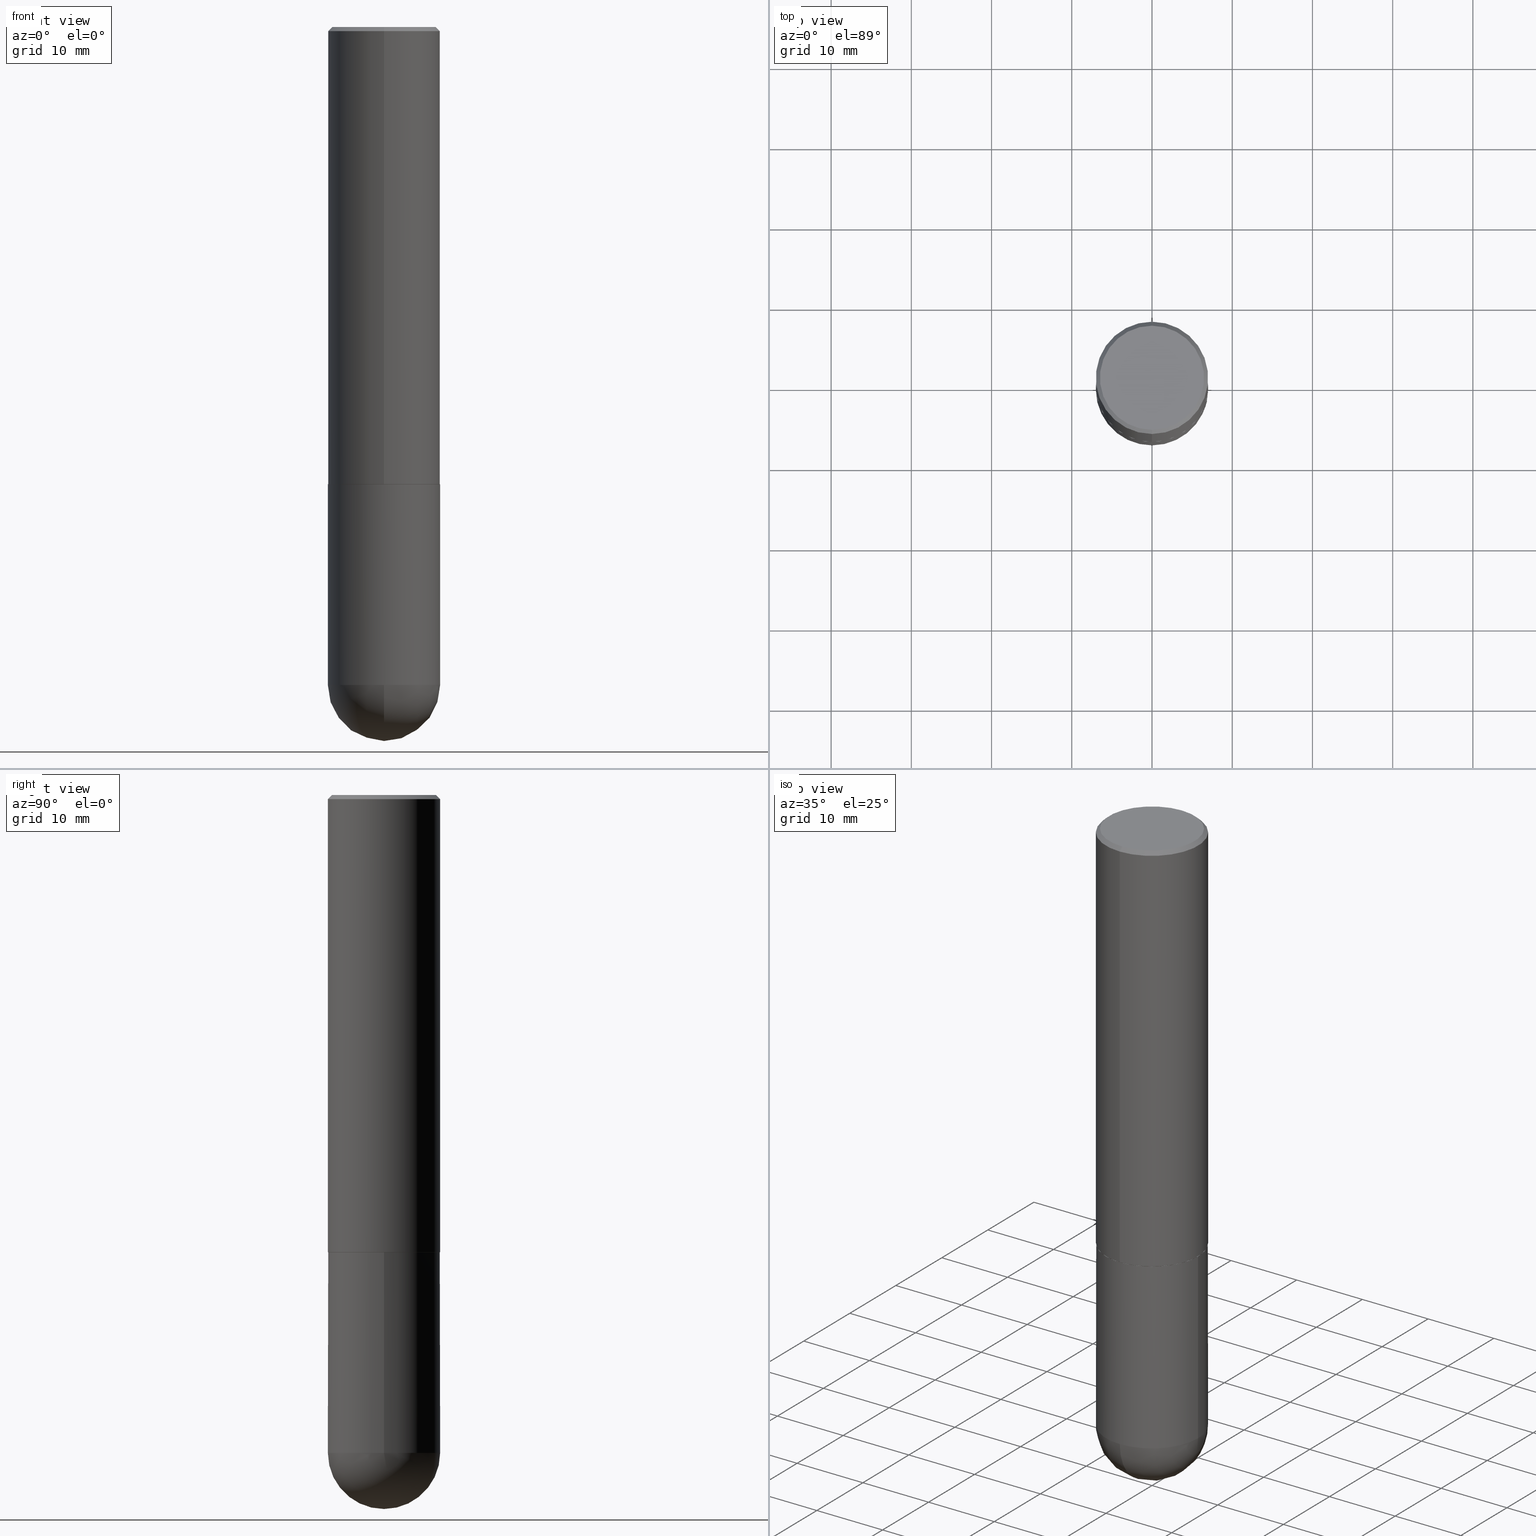
[diagram: canonical four-view strip — front | top / right | iso, engineering-drawing reading convention]
A machine part, canonical four-view strip (front | top / right | iso — engineering-drawing reading convention). The complete STEP part file that produces these views, byte-faithful:
ISO-10303-21;
HEADER;
FILE_DESCRIPTION (( 'STEP AP203' ),
    '1' );
FILE_NAME ('48708.STEP',
    '2024-04-10T11:57:20',
    ( '' ),
    ( '' ),
    'SwSTEP 2.0',
    'SolidWorks 2023',
    '' );
FILE_SCHEMA (( 'CONFIG_CONTROL_DESIGN' ));
ENDSEC;

DATA;
#1 = CARTESIAN_POINT ( 'NONE',  ( 7.563587169093589749E-29, -1.174573157432737594E-14, -3.228299999999999503 ) ) ;
#2 = ORIENTED_EDGE ( 'NONE', *, *, #368, .T. ) ;
#3 = PERSON_AND_ORGANIZATION ( #40, #45 ) ;
#4 = AXIS2_PLACEMENT_3D ( 'NONE', #171, #225, #68 ) ;
#5 = CIRCLE ( 'NONE', #226, 0.2756000000000000671 ) ;
#6 = APPROVAL ( #380, 'UNSPECIFIED' ) ;
#7 = DIRECTION ( 'NONE',  ( -6.982962677686265133E-15, -1.000000000000000000, 3.979385278462145862E-15 ) ) ;
#8 = CARTESIAN_POINT ( 'NONE',  ( 4.892644131177882669E-31, -6.980518845624820179E-17, -0.02000000000000006287 ) ) ;
#9 = DIRECTION ( 'NONE',  ( -2.446322065588933505E-29, 3.490259422812398922E-15, 1.000000000000000000 ) ) ;
#10 = VERTEX_POINT ( 'NONE', #219 ) ;
#11 = AXIS2_PLACEMENT_3D ( 'NONE', #110, #287, #7 ) ;
#12 = CC_DESIGN_PERSON_AND_ORGANIZATION_ASSIGNMENT ( #3, #278, ( #177 ) ) ;
#13 = EDGE_CURVE ( 'NONE', #154, #372, #407, .T. ) ;
#14 = CC_DESIGN_PERSON_AND_ORGANIZATION_ASSIGNMENT ( #103, #385, ( #102 ) ) ;
#15 = AXIS2_PLACEMENT_3D ( 'NONE', #277, #362, #52 ) ;
#16 = DIRECTION ( 'NONE',  ( -6.982962677686265922E-15, -1.000000000000000000, 3.490259422812399316E-15 ) ) ;
#17 = APPROVAL_PERSON_ORGANIZATION ( #363, #38, #80 ) ;
#18 = CARTESIAN_POINT ( 'NONE',  ( 0.000000000000000000, 0.000000000000000000, 0.000000000000000000 ) ) ;
#19 = EDGE_CURVE ( 'NONE', #142, #217, #186, .T. ) ;
#20 = AXIS2_PLACEMENT_3D ( 'NONE', #8, #261, #163 ) ;
#21 = CC_DESIGN_APPROVAL ( #238, ( #92 ) ) ;
#22 = CARTESIAN_POINT ( 'NONE',  ( 0.000000000000000000, 0.000000000000000000, 0.000000000000000000 ) ) ;
#23 = CARTESIAN_POINT ( 'NONE',  ( 4.892644131177882669E-31, -6.980518845624820179E-17, -0.02000000000000006287 ) ) ;
#24 = VERTEX_POINT ( 'NONE', #246 ) ;
#25 = CARTESIAN_POINT ( 'NONE',  ( 1.784845260416607569E-15, 0.2555999999999997163, -7.727481196167660743E-16 ) ) ;
#26 = CARTESIAN_POINT ( 'NONE',  ( 4.892644131177882669E-31, -6.980518845624820179E-17, -0.02000000000000006287 ) ) ;
#27 = COORDINATED_UNIVERSAL_TIME_OFFSET ( 5, 0, .BEHIND. ) ;
#28 = DIRECTION ( 'NONE',  ( -2.445468806185136597E-29, 3.491481338843145583E-15, 1.000000000000000000 ) ) ;
#29 = EDGE_CURVE ( 'NONE', #122, #164, #307, .T. ) ;
#30 = CARTESIAN_POINT ( 'NONE',  ( 0.000000000000000000, 0.000000000000000000, 0.000000000000000000 ) ) ;
#31 = AXIS2_PLACEMENT_3D ( 'NONE', #182, #150, #252 ) ;
#32 = ORIENTED_EDGE ( 'NONE', *, *, #100, .T. ) ;
#33 = CARTESIAN_POINT ( 'NONE',  ( -1.822148268208117593E-15, -0.2555999999999997163, 1.130834686179012597E-15 ) ) ;
#34 = FACE_OUTER_BOUND ( 'NONE', #312, .T. ) ;
#35 = ADVANCED_FACE ( 'NONE', ( #153 ), #233, .T. ) ;
#36 = DATE_AND_TIME ( #319, #315 ) ;
#37 = DIRECTION ( 'NONE',  ( 5.024295867788576727E-15, 0.7071067811866224018, 0.7071067811864726327 ) ) ;
#38 = APPROVAL ( #149, 'UNSPECIFIED' ) ;
#39 = PRODUCT_DEFINITION_SHAPE ( 'NONE', 'NONE',  #92 ) ;
#40 = PERSON ( 'UNSPECIFIED', 'UNSPECIFIED', 'UNSPECIFIED', ('UNSPECIFIED'), ('UNSPECIFIED'), ('UNSPECIFIED') ) ;
#41 = VECTOR ( 'NONE', #178, 39.37007874015748143 ) ;
#42 = EDGE_LOOP ( 'NONE', ( #32, #131, #271, #111 ) ) ;
#43 = ADVANCED_FACE ( 'NONE', ( #369 ), #64, .F. ) ;
#44 = EDGE_LOOP ( 'NONE', ( #329, #215 ) ) ;
#45 = ORGANIZATION ( 'UNSPECIFIED', 'UNSPECIFIED', '' ) ;
#46 = EDGE_CURVE ( 'NONE', #142, #353, #218, .T. ) ;
#47 = SHAPE_DEFINITION_REPRESENTATION ( #39, #371 ) ;
#48 = AXIS2_PLACEMENT_3D ( 'NONE', #84, #151, #89 ) ;
#49 = CIRCLE ( 'NONE', #144, 0.2555999999999997163 ) ;
#50 = CARTESIAN_POINT ( 'NONE',  ( -1.924504513970282100E-15, -0.2756000000000080608, -2.243099999999998317 ) ) ;
#51 = UNCERTAINTY_MEASURE_WITH_UNIT (LENGTH_MEASURE( 1.000000000000000082E-05 ), #158, 'distance_accuracy_value', 'NONE');
#52 = DIRECTION ( 'NONE',  ( -6.982962677686265922E-15, -1.000000000000000000, 3.490259422812398922E-15 ) ) ;
#53 = COORDINATED_UNIVERSAL_TIME_OFFSET ( 5, 0, .BEHIND. ) ;
#54 = APPLICATION_PROTOCOL_DEFINITION ( 'international standard', 'config_control_design', 1994, #220 ) ;
#55 = CARTESIAN_POINT ( 'NONE',  ( 7.894706947007475996E-29, -1.127154920618732565E-14, -3.228299999999999503 ) ) ;
#56 = ORIENTED_EDGE ( 'NONE', *, *, #395, .T. ) ;
#57 = EDGE_LOOP ( 'NONE', ( #332, #136, #108, #387 ) ) ;
#58 = CARTESIAN_POINT ( 'NONE',  ( -5.839967127814690847E-45, 8.332100087509464764E-31, 2.387243777081642336E-16 ) ) ;
#59 = VECTOR ( 'NONE', #37, 39.37007874015748143 ) ;
#60 = VERTEX_POINT ( 'NONE', #309 ) ;
#61 = DIRECTION ( 'NONE',  ( 6.982962677686265922E-15, 1.000000000000000000, -3.484816075009406388E-15 ) ) ;
#62 = EDGE_CURVE ( 'NONE', #164, #10, #325, .T. ) ;
#63 = DIRECTION ( 'NONE',  ( -2.445468806185136597E-29, 3.491481338843145583E-15, 1.000000000000000000 ) ) ;
#64 = PLANE ( 'NONE',  #15 ) ;
#65 = APPROVAL_STATUS ( 'not_yet_approved' ) ;
#66 = CONICAL_SURFACE ( 'NONE', #125, 0.2756000000000000116, 0.7853981633974473908 ) ;
#67 = CIRCLE ( 'NONE', #351, 0.2555999999999997163 ) ;
#68 = DIRECTION ( 'NONE',  ( -1.000000000000000000, 6.982962677686265922E-15, -4.876176775795935793E-29 ) ) ;
#69 = PERSON_AND_ORGANIZATION_ROLE ( 'design_owner' ) ;
#70 = CARTESIAN_POINT ( 'NONE',  ( 4.892644131177882669E-31, -6.980518845624820179E-17, -0.02000000000000006287 ) ) ;
#71 = APPROVAL_ROLE ( '' ) ;
#72 = AXIS2_PLACEMENT_3D ( 'NONE', #30, #193, #316 ) ;
#73 = ORIENTED_EDGE ( 'NONE', *, *, #46, .F. ) ;
#74 = DIRECTION ( 'NONE',  ( 1.000000000000000000, 0.000000000000000000, 0.000000000000000000 ) ) ;
#75 = ADVANCED_FACE ( 'NONE', ( #269 ), #181, .T. ) ;
#76 = FACE_OUTER_BOUND ( 'NONE', #129, .T. ) ;
#77 = CC_DESIGN_PERSON_AND_ORGANIZATION_ASSIGNMENT ( #313, #99, ( #177 ) ) ;
#78 = LOCAL_TIME ( 7, 57, 20.00000000000000000, #109 ) ;
#79 = ADVANCED_FACE ( 'NONE', ( #375 ), #361, .T. ) ;
#80 = APPROVAL_ROLE ( '' ) ;
#81 = ADVANCED_FACE ( 'NONE', ( #311 ), #212, .T. ) ;
#82 = DIRECTION ( 'NONE',  ( -1.000000000000000000, 6.982962677686265922E-15, -4.883557194083112340E-29 ) ) ;
#83 = APPROVAL_PERSON_ORGANIZATION ( #137, #238, #71 ) ;
#84 = CARTESIAN_POINT ( 'NONE',  ( 5.489791347388124383E-29, -7.832491170733302400E-15, -2.244099999999999540 ) ) ;
#85 = DIRECTION ( 'NONE',  ( -2.445468806185136597E-29, 3.491481338843145583E-15, 1.000000000000000000 ) ) ;
#86 = EDGE_LOOP ( 'NONE', ( #2, #156, #292, #202, #266 ) ) ;
#87 = EDGE_CURVE ( 'NONE', #231, #372, #376, .T. ) ;
#88 = MANIFOLD_SOLID_BREP ( 'Body-Move/Copy2[2]', #390 ) ;
#89 = DIRECTION ( 'NONE',  ( -6.982962677686265133E-15, -1.000000000000000000, 3.979385278462145862E-15 ) ) ;
#90 = CYLINDRICAL_SURFACE ( 'NONE', #192, 0.2756000000000001227 ) ;
#91 = AXIS2_PLACEMENT_3D ( 'NONE', #306, #28, #364 ) ;
#92 = PRODUCT_DEFINITION ( 'UNKNOWN', '', #177, #397 ) ;
#93 = ORIENTED_EDGE ( 'NONE', *, *, #223, .T. ) ;
#94 = LINE ( 'NONE', #216, #41 ) ;
#95 = ORIENTED_EDGE ( 'NONE', *, *, #289, .F. ) ;
#96 = VERTEX_POINT ( 'NONE', #386 ) ;
#97 = PERSON_AND_ORGANIZATION ( #40, #45 ) ;
#98 = DIRECTION ( 'NONE',  ( -2.445468806185136877E-29, 3.491481338843145188E-15, 1.000000000000000000 ) ) ;
#99 = PERSON_AND_ORGANIZATION_ROLE ( 'creator' ) ;
#100 = EDGE_CURVE ( 'NONE', #217, #24, #191, .T. ) ;
#101 = CARTESIAN_POINT ( 'NONE',  ( -0.2756000000000000116, -7.595135459587776616E-15, -2.244099999999999540 ) ) ;
#102 = SECURITY_CLASSIFICATION ( '', '', #203 ) ;
#103 = PERSON_AND_ORGANIZATION ( #40, #45 ) ;
#104 = DIRECTION ( 'NONE',  ( -6.982962677686265922E-15, -1.000000000000000000, 3.964946289788476952E-15 ) ) ;
#105 = EDGE_LOOP ( 'NONE', ( #73, #95 ) ) ;
#106 = COORDINATED_UNIVERSAL_TIME_OFFSET ( 5, 0, .BEHIND. ) ;
#107 = CARTESIAN_POINT ( 'NONE',  ( -0.2756000000000000671, 1.958255779754836589E-15, -1.355658510874252287E-29 ) ) ;
#108 = ORIENTED_EDGE ( 'NONE', *, *, #239, .T. ) ;
#109 = COORDINATED_UNIVERSAL_TIME_OFFSET ( 5, 0, .BEHIND. ) ;
#110 = CARTESIAN_POINT ( 'NONE',  ( 5.489791347388124383E-29, -7.832491170733302400E-15, -2.244099999999999540 ) ) ;
#111 = ORIENTED_EDGE ( 'NONE', *, *, #239, .F. ) ;
#112 = CIRCLE ( 'NONE', #161, 0.2756000000000000116 ) ;
#113 = ORIENTED_EDGE ( 'NONE', *, *, #345, .T. ) ;
#114 = EDGE_CURVE ( 'NONE', #24, #217, #399, .T. ) ;
#115 = DIRECTION ( 'NONE',  ( 1.000000000000000000, -6.982962677686267499E-15, 4.876176775795935793E-29 ) ) ;
#116 = ADVANCED_FACE ( 'NONE', ( #378 ), #317, .F. ) ;
#117 = CARTESIAN_POINT ( 'NONE',  ( 0.2756000000000000116, -9.759737786468235716E-15, -2.244099999999999540 ) ) ;
#118 = CARTESIAN_POINT ( 'NONE',  ( 5.487876547960063631E-29, -7.835233272497900762E-15, -2.244099999999999540 ) ) ;
#119 = ORIENTED_EDGE ( 'NONE', *, *, #19, .T. ) ;
#120 = ADVANCED_FACE ( 'NONE', ( #34 ), #66, .T. ) ;
#121 = DIRECTION ( 'NONE',  ( -6.982962677686265922E-15, -1.000000000000000000, 3.490259422812399316E-15 ) ) ;
#122 = VERTEX_POINT ( 'NONE', #33 ) ;
#123 = ORIENTED_EDGE ( 'NONE', *, *, #331, .T. ) ;
#124 =( NAMED_UNIT ( * ) PLANE_ANGLE_UNIT ( ) SI_UNIT ( $, .RADIAN. ) );
#125 = AXIS2_PLACEMENT_3D ( 'NONE', #70, #347, #322 ) ;
#126 = DIRECTION ( 'NONE',  ( -2.445468806185136597E-29, 3.491481338843145583E-15, 1.000000000000000000 ) ) ;
#127 = CARTESIAN_POINT ( 'NONE',  ( 8.249342563543106087E-29, -1.269110819842029813E-14, -3.503899999999999793 ) ) ;
#128 = CARTESIAN_POINT ( 'NONE',  ( 7.563587169093589749E-29, -1.174573157432737594E-14, -3.228299999999999503 ) ) ;
#129 = EDGE_LOOP ( 'NONE', ( #272, #56, #123, #140, #337 ) ) ;
#130 = CARTESIAN_POINT ( 'NONE',  ( 5.487345025322535087E-29, -7.829000911310490294E-15, -2.243099999999999206 ) ) ;
#131 = ORIENTED_EDGE ( 'NONE', *, *, #155, .T. ) ;
#132 = DATE_TIME_ROLE ( 'creation_date' ) ;
#133 = DIRECTION ( 'NONE',  ( -1.000000000000000000, 7.105427357601001070E-15, -4.926315508542082329E-29 ) ) ;
#134 = AXIS2_PLACEMENT_3D ( 'NONE', #23, #179, #61 ) ;
#135 = CIRCLE ( 'NONE', #295, 0.2756000000000000671 ) ;
#136 = ORIENTED_EDGE ( 'NONE', *, *, #114, .T. ) ;
#137 = PERSON_AND_ORGANIZATION ( #40, #45 ) ;
#138 = EDGE_CURVE ( 'NONE', #172, #154, #230, .T. ) ;
#139 = CYLINDRICAL_SURFACE ( 'NONE', #321, 0.2756000000000000671 ) ;
#140 = ORIENTED_EDGE ( 'NONE', *, *, #87, .T. ) ;
#141 = DIRECTION ( 'NONE',  ( -2.446322065588933785E-29, 3.490259422812398922E-15, 1.000000000000000000 ) ) ;
#142 = VERTEX_POINT ( 'NONE', #204 ) ;
#143 = AXIS2_PLACEMENT_3D ( 'NONE', #22, #126, #251 ) ;
#144 = AXIS2_PLACEMENT_3D ( 'NONE', #327, #297, #16 ) ;
#145 = DIRECTION ( 'NONE',  ( 6.982962677686265922E-15, 1.000000000000000000, 0.000000000000000000 ) ) ;
#146 = EDGE_CURVE ( 'NONE', #10, #164, #206, .T. ) ;
#147 = CIRCLE ( 'NONE', #31, 0.2746000000000000107 ) ;
#148 = ADVANCED_FACE ( 'NONE', ( #280 ), #410, .T. ) ;
#149 = APPROVAL_STATUS ( 'not_yet_approved' ) ;
#150 = DIRECTION ( 'NONE',  ( -2.446322065588933505E-29, 3.490259422812398922E-15, 1.000000000000000000 ) ) ;
#151 = DIRECTION ( 'NONE',  ( -2.446322065588933505E-29, 3.490259422812398922E-15, 1.000000000000000000 ) ) ;
#152 = CC_DESIGN_SECURITY_CLASSIFICATION ( #102, ( #177 ) ) ;
#153 = FACE_OUTER_BOUND ( 'NONE', #259, .T. ) ;
#154 = VERTEX_POINT ( 'NONE', #101 ) ;
#155 = EDGE_CURVE ( 'NONE', #24, #10, #198, .T. ) ;
#156 = ORIENTED_EDGE ( 'NONE', *, *, #138, .T. ) ;
#157 = DATE_AND_TIME ( #229, #235 ) ;
#158 =( CONVERSION_BASED_UNIT ( 'INCH', #308 ) LENGTH_UNIT ( ) NAMED_UNIT ( #279 ) );
#159 = DIRECTION ( 'NONE',  ( -2.446322065588933505E-29, 3.490259422812398922E-15, 1.000000000000000000 ) ) ;
#160 =( LENGTH_UNIT ( ) NAMED_UNIT ( * ) SI_UNIT ( $, .METRE. ) );
#161 = AXIS2_PLACEMENT_3D ( 'NONE', #330, #185, #336 ) ;
#162 = CARTESIAN_POINT ( 'NONE',  ( 0.000000000000000000, 0.000000000000000000, 0.000000000000000000 ) ) ;
#163 = DIRECTION ( 'NONE',  ( -6.982962677686265922E-15, -1.000000000000000000, 3.484816075009406388E-15 ) ) ;
#164 = VERTEX_POINT ( 'NONE', #389 ) ;
#165 = MECHANICAL_CONTEXT ( 'NONE', #220, 'mechanical' ) ;
#166 = CARTESIAN_POINT ( 'NONE',  ( -0.2756000000000000671, -7.595135459587778194E-15, -3.228299999999999503 ) ) ;
#167 = EDGE_CURVE ( 'NONE', #353, #24, #227, .T. ) ;
#168 = CARTESIAN_POINT ( 'NONE',  ( 7.563587169093589749E-29, -1.174573157432737594E-14, -3.228299999999999503 ) ) ;
#169 = ORIENTED_EDGE ( 'NONE', *, *, #146, .T. ) ;
#170 = DIRECTION ( 'NONE',  ( 0.000000000000000000, 0.000000000000000000, 1.000000000000000000 ) ) ;
#171 = CARTESIAN_POINT ( 'NONE',  ( 1.924504513970389780E-15, 0.2755999999999921846, -2.244100000000000428 ) ) ;
#172 = VERTEX_POINT ( 'NONE', #166 ) ;
#173 = ORIENTED_EDGE ( 'NONE', *, *, #100, .F. ) ;
#174 = EDGE_CURVE ( 'NONE', #274, #60, #285, .T. ) ;
#175 = VECTOR ( 'NONE', #201, 39.37007874015748143 ) ;
#176 = VECTOR ( 'NONE', #356, 39.37007874015748143 ) ;
#177 = PRODUCT_DEFINITION_FORMATION_WITH_SPECIFIED_SOURCE ( 'ANY', '', #294, .NOT_KNOWN. ) ;
#178 = DIRECTION ( 'NONE',  ( 4.937700262164543309E-15, 0.7071067811865444641, -0.7071067811865506814 ) ) ;
#179 = DIRECTION ( 'NONE',  ( 2.446322065588933505E-29, -3.490259422812398922E-15, -1.000000000000000000 ) ) ;
#180 = CARTESIAN_POINT ( 'NONE',  ( 1.924504513970413840E-15, 0.2755999999999887429, -3.228300000000000836 ) ) ;
#181 = CYLINDRICAL_SURFACE ( 'NONE', #143, 0.2756000000000000671 ) ;
#182 = CARTESIAN_POINT ( 'NONE',  ( 5.489791347388124383E-29, -7.832491170733302400E-15, -2.244099999999999540 ) ) ;
#183 = CC_DESIGN_APPROVAL ( #6, ( #177 ) ) ;
#184 = DIRECTION ( 'NONE',  ( 1.000000000000000000, -6.982962677686265922E-15, 0.000000000000000000 ) ) ;
#185 = DIRECTION ( 'NONE',  ( -2.445468806185136597E-29, 3.491481338843145583E-15, 1.000000000000000000 ) ) ;
#186 = LINE ( 'NONE', #248, #314 ) ;
#187 = PLANE ( 'NONE',  #391 ) ;
#188 = DIRECTION ( 'NONE',  ( -2.446322065588933505E-29, 3.490259422812398922E-15, 1.000000000000000000 ) ) ;
#189 = ORIENTED_EDGE ( 'NONE', *, *, #304, .T. ) ;
#190 = CALENDAR_DATE ( 2024, 10, 4 ) ;
#191 = CIRCLE ( 'NONE', #298, 0.2756000000000002892 ) ;
#192 = AXIS2_PLACEMENT_3D ( 'NONE', #18, #403, #268 ) ;
#193 = DIRECTION ( 'NONE',  ( -2.446322065588933505E-29, 3.490259422812398922E-15, 1.000000000000000000 ) ) ;
#194 = ORIENTED_EDGE ( 'NONE', *, *, #174, .T. ) ;
#195 = CARTESIAN_POINT ( 'NONE',  ( 5.487345025322535087E-29, -7.829000911310490294E-15, -2.243099999999999206 ) ) ;
#196 = ADVANCED_FACE ( 'NONE', ( #383 ), #207, .T. ) ;
#197 = PERSON_AND_ORGANIZATION_ROLE ( 'creator' ) ;
#198 = LINE ( 'NONE', #324, #241 ) ;
#199 = CC_DESIGN_PERSON_AND_ORGANIZATION_ASSIGNMENT ( #97, #69, ( #294 ) ) ;
#200 = ORIENTED_EDGE ( 'NONE', *, *, #340, .F. ) ;
#201 = DIRECTION ( 'NONE',  ( -2.445468806185136877E-29, 3.491481338843145188E-15, 1.000000000000000000 ) ) ;
#202 = ORIENTED_EDGE ( 'NONE', *, *, #87, .F. ) ;
#203 = SECURITY_CLASSIFICATION_LEVEL ( 'unclassified' ) ;
#204 = CARTESIAN_POINT ( 'NONE',  ( -1.917521551292593719E-15, -0.2746000000000077823, -2.244099999999998207 ) ) ;
#205 = ADVANCED_FACE ( 'NONE', ( #76 ), #139, .T. ) ;
#206 = CIRCLE ( 'NONE', #20, 0.2756000000000000116 ) ;
#207 = CONICAL_SURFACE ( 'NONE', #11, 0.2746000000000000107, 0.7853981633975507526 ) ;
#208 = DATE_TIME_ROLE ( 'classification_date' ) ;
#209 = SPHERICAL_SURFACE ( 'NONE', #305, 0.2756000000000003447 ) ;
#210 = AXIS2_PLACEMENT_3D ( 'NONE', #162, #170, #74 ) ;
#211 = CARTESIAN_POINT ( 'NONE',  ( 7.894706947007475996E-29, -1.127154920618732565E-14, -3.228299999999999503 ) ) ;
#212 = CYLINDRICAL_SURFACE ( 'NONE', #72, 0.2756000000000001227 ) ;
#213 = ORIENTED_EDGE ( 'NONE', *, *, #46, .T. ) ;
#214 = DATE_AND_TIME ( #366, #326 ) ;
#215 = ORIENTED_EDGE ( 'NONE', *, *, #255, .T. ) ;
#216 = CARTESIAN_POINT ( 'NONE',  ( 1.924504513970335348E-15, 0.2755999999999999006, -0.02000000000000102390 ) ) ;
#217 = VERTEX_POINT ( 'NONE', #50 ) ;
#218 = CIRCLE ( 'NONE', #48, 0.2746000000000000107 ) ;
#219 = CARTESIAN_POINT ( 'NONE',  ( 1.924504513970335348E-15, 0.2755999999999999006, -0.02000000000000102390 ) ) ;
#220 = APPLICATION_CONTEXT ( 'configuration controlled 3d designs of mechanical parts and assemblies' ) ;
#221 = FACE_OUTER_BOUND ( 'NONE', #42, .T. ) ;
#222 = CARTESIAN_POINT ( 'NONE',  ( -1.890753248185833319E-15, -0.2756000000000000671, -0.01999999999999910530 ) ) ;
#223 = EDGE_CURVE ( 'NONE', #274, #411, #343, .T. ) ;
#224 = MANIFOLD_SOLID_BREP ( 'Body-Move/Copy2[1]', #303 ) ;
#225 = DIRECTION ( 'NONE',  ( 2.438088387897960049E-29, -3.491481338843145188E-15, -1.000000000000000000 ) ) ;
#226 = AXIS2_PLACEMENT_3D ( 'NONE', #409, #63, #370 ) ;
#227 = LINE ( 'NONE', #344, #59 ) ;
#228 = ORIENTED_EDGE ( 'NONE', *, *, #368, .F. ) ;
#229 = CALENDAR_DATE ( 2024, 10, 4 ) ;
#230 = LINE ( 'NONE', #107, #175 ) ;
#231 = VERTEX_POINT ( 'NONE', #359 ) ;
#232 = DATE_AND_TIME ( #190, #78 ) ;
#233 = CONICAL_SURFACE ( 'NONE', #134, 0.2756000000000000116, 0.7853981633974473908 ) ;
#234 = CARTESIAN_POINT ( 'NONE',  ( 0.000000000000000000, 0.000000000000000000, 0.000000000000000000 ) ) ;
#235 = LOCAL_TIME ( 7, 57, 20.00000000000000000, #106 ) ;
#236 = ORIENTED_EDGE ( 'NONE', *, *, #289, .T. ) ;
#237 = ORIENTED_EDGE ( 'NONE', *, *, #62, .T. ) ;
#238 = APPROVAL ( #65, 'UNSPECIFIED' ) ;
#239 = EDGE_CURVE ( 'NONE', #217, #164, #240, .T. ) ;
#240 = LINE ( 'NONE', #392, #176 ) ;
#241 = VECTOR ( 'NONE', #141, 39.37007874015748143 ) ;
#242 = DIRECTION ( 'NONE',  ( -2.445468806185136597E-29, 3.491481338843145583E-15, 1.000000000000000000 ) ) ;
#243 = CC_DESIGN_DATE_AND_TIME_ASSIGNMENT ( #36, #132, ( #92 ) ) ;
#244 = APPLICATION_CONTEXT ( 'configuration controlled 3d designs of mechanical parts and assemblies' ) ;
#245 = AXIS2_PLACEMENT_3D ( 'NONE', #211, #338, #367 ) ;
#246 = CARTESIAN_POINT ( 'NONE',  ( 1.958255779754864988E-15, 0.2755999999999924621, -2.243100000000000538 ) ) ;
#247 = DIRECTION ( 'NONE',  ( 6.982962677686265922E-15, 1.000000000000000000, -3.964946289788475374E-15 ) ) ;
#248 = CARTESIAN_POINT ( 'NONE',  ( -1.917521551292593719E-15, -0.2746000000000077823, -2.244099999999998207 ) ) ;
#249 = CARTESIAN_POINT ( 'NONE',  ( 1.954703066076090911E-15, 0.2745999999999921837, -2.244100000000000428 ) ) ;
#250 = DIRECTION ( 'NONE',  ( -4.937700262165053702E-15, -0.7071067811866175168, 0.7071067811864775177 ) ) ;
#251 = DIRECTION ( 'NONE',  ( 1.000000000000000000, -6.982962677686267499E-15, 4.876176775795935793E-29 ) ) ;
#252 = DIRECTION ( 'NONE',  ( -6.982962677686265133E-15, -1.000000000000000000, 3.979385278462145862E-15 ) ) ;
#253 = CALENDAR_DATE ( 2024, 10, 4 ) ;
#254 = DIRECTION ( 'NONE',  ( -2.446322065588933505E-29, 3.490259422812398922E-15, 1.000000000000000000 ) ) ;
#255 = EDGE_CURVE ( 'NONE', #122, #96, #49, .T. ) ;
#256 = APPROVAL_PERSON_ORGANIZATION ( #258, #6, #377 ) ;
#257 = DIRECTION ( 'NONE',  ( -7.105427357601001859E-15, -1.000000000000000000, 0.000000000000000000 ) ) ;
#258 = PERSON_AND_ORGANIZATION ( #40, #45 ) ;
#259 = EDGE_LOOP ( 'NONE', ( #393, #200, #113, #169 ) ) ;
#260 = PERSON_AND_ORGANIZATION ( #40, #45 ) ;
#261 = DIRECTION ( 'NONE',  ( -2.446322065588933505E-29, 3.490259422812398922E-15, 1.000000000000000000 ) ) ;
#262 = ADVANCED_FACE ( 'NONE', ( #264 ), #209, .T. ) ;
#263 = ORIENTED_EDGE ( 'NONE', *, *, #167, .F. ) ;
#264 = FACE_OUTER_BOUND ( 'NONE', #346, .T. ) ;
#265 = FACE_OUTER_BOUND ( 'NONE', #44, .T. ) ;
#266 = ORIENTED_EDGE ( 'NONE', *, *, #382, .T. ) ;
#267 =( GEOMETRIC_REPRESENTATION_CONTEXT ( 3 ) GLOBAL_UNCERTAINTY_ASSIGNED_CONTEXT ( ( #51 ) ) GLOBAL_UNIT_ASSIGNED_CONTEXT ( ( #158, #124, #354 ) ) REPRESENTATION_CONTEXT ( 'NONE', 'WORKASPACE' ) );
#268 = DIRECTION ( 'NONE',  ( -6.982962677686265922E-15, -1.000000000000000000, 3.490259422812398922E-15 ) ) ;
#269 = FACE_OUTER_BOUND ( 'NONE', #86, .T. ) ;
#270 = ORIENTED_EDGE ( 'NONE', *, *, #395, .F. ) ;
#271 = ORIENTED_EDGE ( 'NONE', *, *, #62, .F. ) ;
#272 = ORIENTED_EDGE ( 'NONE', *, *, #138, .F. ) ;
#273 = PRODUCT_RELATED_PRODUCT_CATEGORY ( 'detail', '', ( #294 ) ) ;
#274 = VERTEX_POINT ( 'NONE', #127 ) ;
#275 = DATE_AND_TIME ( #253, #357 ) ;
#276 = AXIS2_PLACEMENT_3D ( 'NONE', #339, #188, #301 ) ;
#277 = CARTESIAN_POINT ( 'NONE',  ( 5.489791347388124383E-29, -7.832491170733302400E-15, -2.244099999999999540 ) ) ;
#278 = PERSON_AND_ORGANIZATION_ROLE ( 'design_supplier' ) ;
#279 = DIMENSIONAL_EXPONENTS ( 1.000000000000000000, 0.000000000000000000, 0.000000000000000000, 0.000000000000000000, 0.000000000000000000, 0.000000000000000000, 0.000000000000000000 ) ;
#280 = FACE_OUTER_BOUND ( 'NONE', #281, .T. ) ;
#281 = EDGE_LOOP ( 'NONE', ( #404, #93, #349, #323 ) ) ;
#282 = COORDINATED_UNIVERSAL_TIME_OFFSET ( 5, 0, .BEHIND. ) ;
#283 = DIRECTION ( 'NONE',  ( -1.000000000000000000, 6.982962677686265922E-15, -4.883557194083112340E-29 ) ) ;
#284 = EDGE_LOOP ( 'NONE', ( #263, #236, #119, #290 ) ) ;
#285 = CIRCLE ( 'NONE', #335, 0.2756000000000003447 ) ;
#286 = AXIS2_PLACEMENT_3D ( 'NONE', #296, #300, #145 ) ;
#287 = DIRECTION ( 'NONE',  ( -2.446322065588933505E-29, 3.490259422812398922E-15, 1.000000000000000000 ) ) ;
#288 = ORIENTED_EDGE ( 'NONE', *, *, #29, .T. ) ;
#289 = EDGE_CURVE ( 'NONE', #353, #142, #147, .T. ) ;
#290 = ORIENTED_EDGE ( 'NONE', *, *, #114, .F. ) ;
#291 = CC_DESIGN_PERSON_AND_ORGANIZATION_ASSIGNMENT ( #260, #197, ( #92 ) ) ;
#292 = ORIENTED_EDGE ( 'NONE', *, *, #304, .F. ) ;
#293 = AXIS2_PLACEMENT_3D ( 'NONE', #195, #254, #104 ) ;
#294 = PRODUCT ( '48708', '48708', '', ( #165 ) ) ;
#295 = AXIS2_PLACEMENT_3D ( 'NONE', #55, #402, #310 ) ;
#296 = CARTESIAN_POINT ( 'NONE',  ( 7.563587169093589749E-29, -1.174573157432737594E-14, -3.228299999999999503 ) ) ;
#297 = DIRECTION ( 'NONE',  ( -2.446322065588933505E-29, 3.490259422812398922E-15, 1.000000000000000000 ) ) ;
#298 = AXIS2_PLACEMENT_3D ( 'NONE', #130, #9, #341 ) ;
#299 = VECTOR ( 'NONE', #98, 39.37007874015748143 ) ;
#300 = DIRECTION ( 'NONE',  ( 1.000000000000000000, -6.982962677686265922E-15, 4.883557194083112340E-29 ) ) ;
#301 = DIRECTION ( 'NONE',  ( -6.982962677686265133E-15, -1.000000000000000000, 3.979385278462145862E-15 ) ) ;
#302 = EDGE_LOOP ( 'NONE', ( #189, #318 ) ) ;
#303 = CLOSED_SHELL ( 'NONE', ( #75, #262, #148, #116, #205 ) ) ;
#304 = EDGE_CURVE ( 'NONE', #372, #154, #112, .T. ) ;
#305 = AXIS2_PLACEMENT_3D ( 'NONE', #128, #82, #247 ) ;
#306 = CARTESIAN_POINT ( 'NONE',  ( 7.894706947007475996E-29, -1.127154920618732565E-14, -3.228299999999999503 ) ) ;
#307 = LINE ( 'NONE', #222, #373 ) ;
#308 = LENGTH_MEASURE_WITH_UNIT ( LENGTH_MEASURE( 0.02539999999999999897 ), #160 );
#309 = CARTESIAN_POINT ( 'NONE',  ( -1.958255779754759675E-15, -0.2756000000000117245, -3.228299999999998615 ) ) ;
#310 = DIRECTION ( 'NONE',  ( 1.000000000000000000, -6.982962677686264344E-15, 0.000000000000000000 ) ) ;
#311 = FACE_OUTER_BOUND ( 'NONE', #57, .T. ) ;
#312 = EDGE_LOOP ( 'NONE', ( #333, #288, #237, #358 ) ) ;
#313 = PERSON_AND_ORGANIZATION ( #40, #45 ) ;
#314 = VECTOR ( 'NONE', #250, 39.37007874015748143 ) ;
#315 = LOCAL_TIME ( 7, 57, 20.00000000000000000, #282 ) ;
#316 = DIRECTION ( 'NONE',  ( -6.982962677686265922E-15, -1.000000000000000000, 3.490259422812398922E-15 ) ) ;
#317 = PLANE ( 'NONE',  #4 ) ;
#318 = ORIENTED_EDGE ( 'NONE', *, *, #13, .T. ) ;
#319 = CALENDAR_DATE ( 2024, 10, 4 ) ;
#320 = CARTESIAN_POINT ( 'NONE',  ( 0.2756000000000000671, -1.924504513970335743E-15, 1.343874319409360268E-29 ) ) ;
#321 = AXIS2_PLACEMENT_3D ( 'NONE', #234, #242, #115 ) ;
#322 = DIRECTION ( 'NONE',  ( 6.982962677686265922E-15, 1.000000000000000000, -3.484816075009406388E-15 ) ) ;
#323 = ORIENTED_EDGE ( 'NONE', *, *, #331, .F. ) ;
#324 = CARTESIAN_POINT ( 'NONE',  ( 1.958255779754836589E-15, 0.2756000000000001227, -9.619154969270975392E-16 ) ) ;
#325 = CIRCLE ( 'NONE', #381, 0.2756000000000000116 ) ;
#326 = LOCAL_TIME ( 7, 57, 20.00000000000000000, #53 ) ;
#327 = CARTESIAN_POINT ( 'NONE',  ( -5.839967127814690847E-45, 8.332100087509464764E-31, 2.387243777081642336E-16 ) ) ;
#328 = DIRECTION ( 'NONE',  ( -2.446322065588933505E-29, 3.490259422812398922E-15, 1.000000000000000000 ) ) ;
#329 = ORIENTED_EDGE ( 'NONE', *, *, #340, .T. ) ;
#330 = CARTESIAN_POINT ( 'NONE',  ( 5.487876547960063631E-29, -7.835233272497900762E-15, -2.244099999999999540 ) ) ;
#331 = EDGE_CURVE ( 'NONE', #60, #231, #400, .T. ) ;
#332 = ORIENTED_EDGE ( 'NONE', *, *, #155, .F. ) ;
#333 = ORIENTED_EDGE ( 'NONE', *, *, #255, .F. ) ;
#334 = ORIENTED_EDGE ( 'NONE', *, *, #223, .F. ) ;
#335 = AXIS2_PLACEMENT_3D ( 'NONE', #1, #133, #257 ) ;
#336 = DIRECTION ( 'NONE',  ( 1.000000000000000000, -6.982962677686265922E-15, 0.000000000000000000 ) ) ;
#337 = ORIENTED_EDGE ( 'NONE', *, *, #13, .F. ) ;
#338 = DIRECTION ( 'NONE',  ( -2.445468806185136597E-29, 3.491481338843145583E-15, 1.000000000000000000 ) ) ;
#339 = CARTESIAN_POINT ( 'NONE',  ( 5.489791347388124383E-29, -7.832491170733302400E-15, -2.244099999999999540 ) ) ;
#340 = EDGE_CURVE ( 'NONE', #96, #122, #67, .T. ) ;
#341 = DIRECTION ( 'NONE',  ( -6.982962677686265922E-15, -1.000000000000000000, 3.964946289788476952E-15 ) ) ;
#342 = AXIS2_PLACEMENT_3D ( 'NONE', #118, #85, #184 ) ;
#343 = CIRCLE ( 'NONE', #286, 0.2756000000000003447 ) ;
#344 = CARTESIAN_POINT ( 'NONE',  ( 1.951150352397289618E-15, 0.2745999999999921837, -2.244100000000000428 ) ) ;
#345 = EDGE_CURVE ( 'NONE', #96, #10, #94, .T. ) ;
#346 = EDGE_LOOP ( 'NONE', ( #334, #194, #270, #228 ) ) ;
#347 = DIRECTION ( 'NONE',  ( 2.446322065588933505E-29, -3.490259422812398922E-15, -1.000000000000000000 ) ) ;
#348 = ADVANCED_FACE ( 'NONE', ( #221 ), #90, .T. ) ;
#349 = ORIENTED_EDGE ( 'NONE', *, *, #382, .F. ) ;
#350 = APPROVAL_DATE_TIME ( #232, #6 ) ;
#351 = AXIS2_PLACEMENT_3D ( 'NONE', #58, #328, #121 ) ;
#352 = DIRECTION ( 'NONE',  ( 6.982962677686265922E-15, 1.000000000000000000, -3.964946289788475374E-15 ) ) ;
#353 = VERTEX_POINT ( 'NONE', #249 ) ;
#354 =( NAMED_UNIT ( * ) SI_UNIT ( $, .STERADIAN. ) SOLID_ANGLE_UNIT ( ) );
#355 = AXIS2_PLACEMENT_3D ( 'NONE', #168, #283, #352 ) ;
#356 = DIRECTION ( 'NONE',  ( -2.446322065588933785E-29, 3.490259422812398922E-15, 1.000000000000000000 ) ) ;
#357 = LOCAL_TIME ( 7, 57, 20.00000000000000000, #27 ) ;
#358 = ORIENTED_EDGE ( 'NONE', *, *, #345, .F. ) ;
#359 = CARTESIAN_POINT ( 'NONE',  ( 0.2756000000000000671, -1.147789575331294974E-14, -3.228299999999999503 ) ) ;
#360 = ADVANCED_FACE ( 'NONE', ( #265 ), #187, .F. ) ;
#361 = CONICAL_SURFACE ( 'NONE', #276, 0.2746000000000000107, 0.7853981633975507526 ) ;
#362 = DIRECTION ( 'NONE',  ( -2.446322065588933225E-29, 3.490259422812398922E-15, 1.000000000000000000 ) ) ;
#363 = PERSON_AND_ORGANIZATION ( #40, #45 ) ;
#364 = DIRECTION ( 'NONE',  ( 1.000000000000000000, -6.982962677686264344E-15, 0.000000000000000000 ) ) ;
#365 = DIRECTION ( 'NONE',  ( -4.851104656540959542E-15, -0.7071067811865493491, -0.7071067811865457964 ) ) ;
#366 = CALENDAR_DATE ( 2024, 10, 4 ) ;
#367 = DIRECTION ( 'NONE',  ( 1.000000000000000000, -6.982962677686264344E-15, 0.000000000000000000 ) ) ;
#368 = EDGE_CURVE ( 'NONE', #411, #172, #5, .T. ) ;
#369 = FACE_OUTER_BOUND ( 'NONE', #105, .T. ) ;
#370 = DIRECTION ( 'NONE',  ( 1.000000000000000000, -6.982962677686264344E-15, 0.000000000000000000 ) ) ;
#371 = ADVANCED_BREP_SHAPE_REPRESENTATION ( '48708', ( #224, #88, #210 ), #267 ) ;
#372 = VERTEX_POINT ( 'NONE', #117 ) ;
#373 = VECTOR ( 'NONE', #365, 39.37007874015748143 ) ;
#374 = CIRCLE ( 'NONE', #91, 0.2756000000000000671 ) ;
#375 = FACE_OUTER_BOUND ( 'NONE', #379, .T. ) ;
#376 = LINE ( 'NONE', #320, #299 ) ;
#377 = APPROVAL_ROLE ( '' ) ;
#378 = FACE_OUTER_BOUND ( 'NONE', #302, .T. ) ;
#379 = EDGE_LOOP ( 'NONE', ( #213, #384, #173, #401 ) ) ;
#380 = APPROVAL_STATUS ( 'not_yet_approved' ) ;
#381 = AXIS2_PLACEMENT_3D ( 'NONE', #26, #159, #406 ) ;
#382 = EDGE_CURVE ( 'NONE', #231, #411, #374, .T. ) ;
#383 = FACE_OUTER_BOUND ( 'NONE', #284, .T. ) ;
#384 = ORIENTED_EDGE ( 'NONE', *, *, #167, .T. ) ;
#385 = PERSON_AND_ORGANIZATION_ROLE ( 'classification_officer' ) ;
#386 = CARTESIAN_POINT ( 'NONE',  ( 1.854674887193471656E-15, 0.2555999999999997163, -6.533859307626841301E-16 ) ) ;
#387 = ORIENTED_EDGE ( 'NONE', *, *, #146, .F. ) ;
#388 = APPLICATION_PROTOCOL_DEFINITION ( 'international standard', 'config_control_design', 1994, #244 ) ;
#389 = CARTESIAN_POINT ( 'NONE',  ( -1.890753248185833319E-15, -0.2756000000000000671, -0.01999999999999910530 ) ) ;
#390 = CLOSED_SHELL ( 'NONE', ( #79, #348, #120, #35, #81, #196, #43, #360 ) ) ;
#391 = AXIS2_PLACEMENT_3D ( 'NONE', #25, #405, #398 ) ;
#392 = CARTESIAN_POINT ( 'NONE',  ( -1.924504513970335743E-15, -0.2756000000000001227, 9.619154969270975392E-16 ) ) ;
#393 = ORIENTED_EDGE ( 'NONE', *, *, #29, .F. ) ;
#394 = CC_DESIGN_DATE_AND_TIME_ASSIGNMENT ( #157, #208, ( #102 ) ) ;
#395 = EDGE_CURVE ( 'NONE', #172, #60, #135, .T. ) ;
#396 = APPROVAL_DATE_TIME ( #214, #38 ) ;
#397 = DESIGN_CONTEXT ( 'detailed design', #244, 'design' ) ;
#398 = DIRECTION ( 'NONE',  ( 6.982962677686265922E-15, 1.000000000000000000, -3.490259422812398922E-15 ) ) ;
#399 = CIRCLE ( 'NONE', #293, 0.2756000000000002892 ) ;
#400 = CIRCLE ( 'NONE', #245, 0.2756000000000000671 ) ;
#401 = ORIENTED_EDGE ( 'NONE', *, *, #19, .F. ) ;
#402 = DIRECTION ( 'NONE',  ( -2.445468806185136597E-29, 3.491481338843145583E-15, 1.000000000000000000 ) ) ;
#403 = DIRECTION ( 'NONE',  ( -2.446322065588933505E-29, 3.490259422812398922E-15, 1.000000000000000000 ) ) ;
#404 = ORIENTED_EDGE ( 'NONE', *, *, #174, .F. ) ;
#405 = DIRECTION ( 'NONE',  ( 2.446322065588933225E-29, -3.490259422812398922E-15, -1.000000000000000000 ) ) ;
#406 = DIRECTION ( 'NONE',  ( -6.982962677686265922E-15, -1.000000000000000000, 3.484816075009406388E-15 ) ) ;
#407 = CIRCLE ( 'NONE', #342, 0.2756000000000000116 ) ;
#408 = CC_DESIGN_APPROVAL ( #38, ( #102 ) ) ;
#409 = CARTESIAN_POINT ( 'NONE',  ( 7.894706947007475996E-29, -1.127154920618732565E-14, -3.228299999999999503 ) ) ;
#410 = SPHERICAL_SURFACE ( 'NONE', #355, 0.2756000000000003447 ) ;
#411 = VERTEX_POINT ( 'NONE', #180 ) ;
#412 = APPROVAL_DATE_TIME ( #275, #238 ) ;
ENDSEC;
END-ISO-10303-21;
